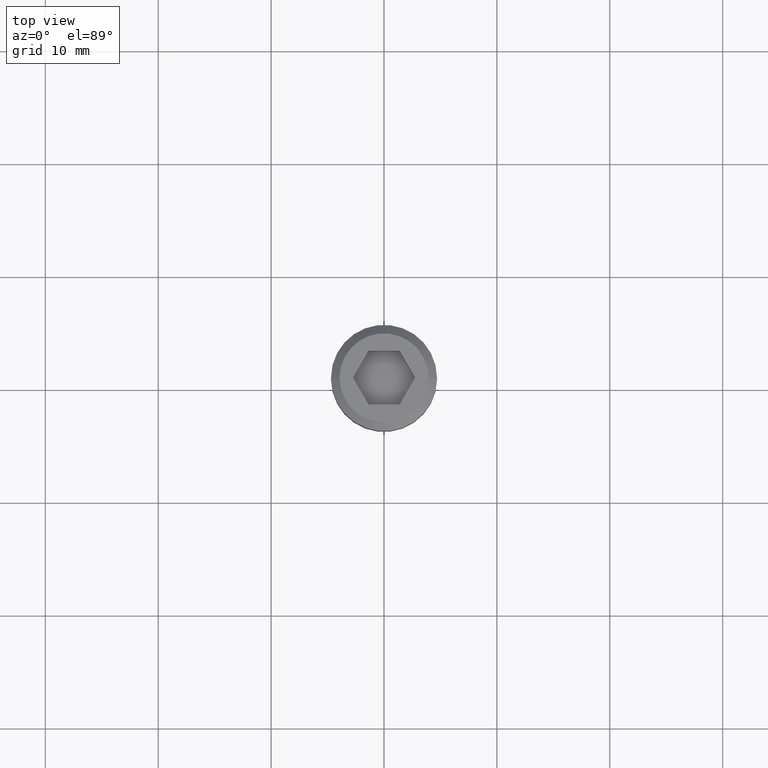
[diagram: clean part render]
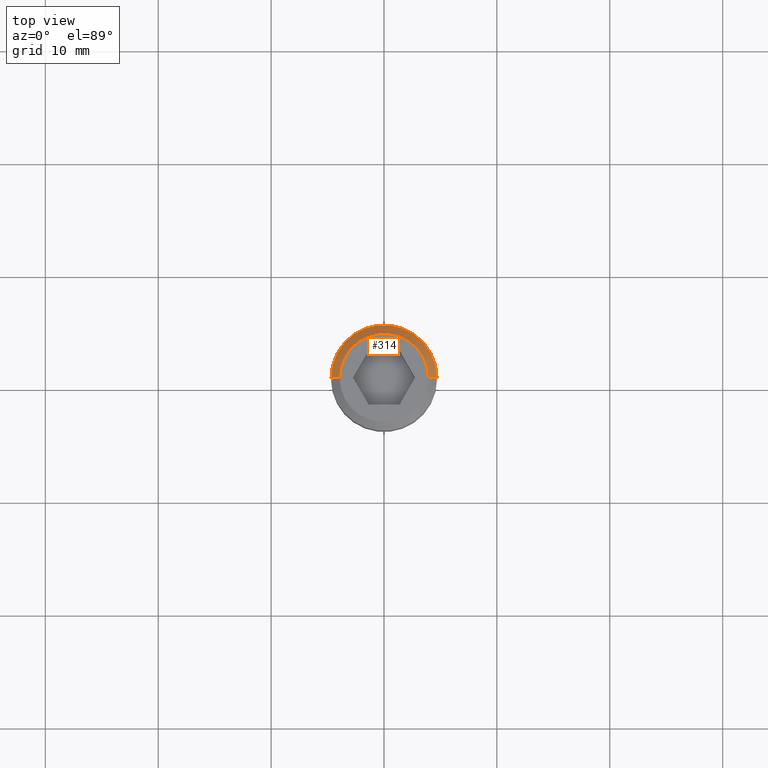
[diagram: same view with one face highlighted and labeled with its STEP entity id]
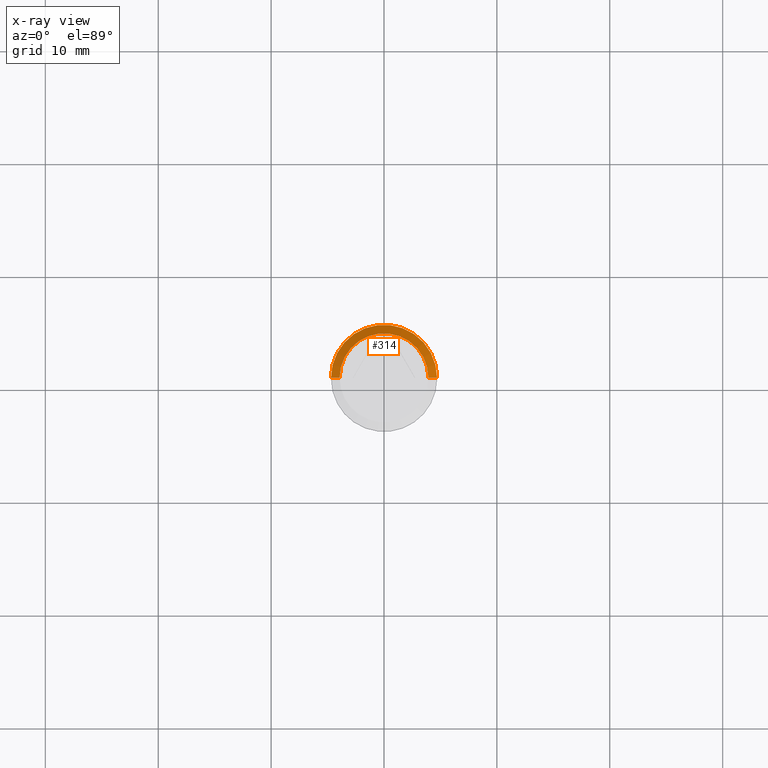
[diagram: x-ray of the same camera — body ghosted, the highlighted face saturated]
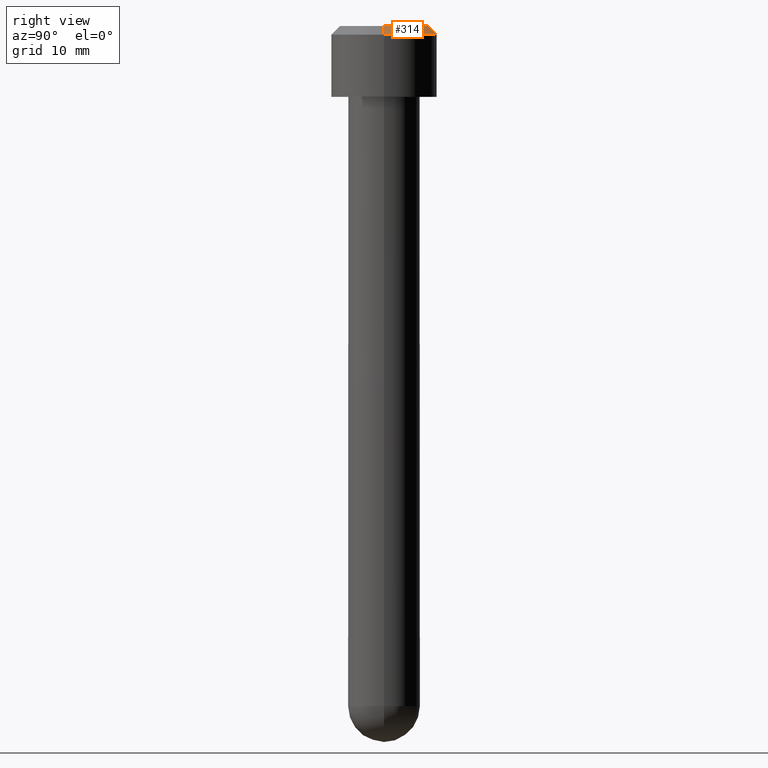
[diagram: same view with one face highlighted and labeled with its STEP entity id]
A machine part, top view. The second image highlights one B-rep face of the part: STEP entity #314.
The next image is the same camera in x-ray: the body ghosted, the highlighted face saturated — about 0% of this face is hidden behind the body in this view.
A second angle (right view) of the same face is appended — the face is thin or edge-on in the first view.
In plain terms, the highlighted conical surface has half-angle 45 deg.
Its self-contained STEP definition (entity closure, byte-faithful):
#13 = AXIS2_PLACEMENT_3D ( 'NONE', #112, #111, #101 ) ;
#19 = EDGE_CURVE ( 'NONE', #83, #193, #470, .T. ) ;
#33 = AXIS2_PLACEMENT_3D ( 'NONE', #80, #102, #161 ) ;
#49 = EDGE_CURVE ( 'NONE', #189, #83, #492, .T. ) ;
#50 = EDGE_CURVE ( 'NONE', #115, #189, #333, .T. ) ;
#68 = AXIS2_PLACEMENT_3D ( 'NONE', #228, #212, #226 ) ;
#76 = EDGE_CURVE ( 'NONE', #115, #193, #509, .T. ) ;
#80 = CARTESIAN_POINT ( 'NONE',  ( 0.0000000000000000000, 0.0000000000000000000, 0.0000000000000000000 ) ) ;
#83 = VERTEX_POINT ( 'NONE', #117 ) ;
#87 = CARTESIAN_POINT ( 'NONE',  ( -0.1549999999999999400, 0.0000000000000000000, 0.0000000000000000000 ) ) ;
#95 = CARTESIAN_POINT ( 'NONE',  ( 0.1850000000000000000, 0.0000000000000000000, -0.03000000000000012400 ) ) ;
#101 = DIRECTION ( 'NONE',  ( 1.000000000000000000, 0.0000000000000000000, 0.0000000000000000000 ) ) ;
#102 = DIRECTION ( 'NONE',  ( 0.0000000000000000000, 0.0000000000000000000, 1.000000000000000000 ) ) ;
#103 = CARTESIAN_POINT ( 'NONE',  ( 0.1549999999999999400, 1.898202538678397000E-017, 0.0000000000000000000 ) ) ;
#111 = DIRECTION ( 'NONE',  ( 0.0000000000000000000, 0.0000000000000000000, -1.000000000000000000 ) ) ;
#112 = CARTESIAN_POINT ( 'NONE',  ( 0.0000000000000000000, 0.0000000000000000000, -0.03000000000000012400 ) ) ;
#115 = VERTEX_POINT ( 'NONE', #206 ) ;
#117 = CARTESIAN_POINT ( 'NONE',  ( -0.1850000000000000000, 2.265596578422603000E-017, -0.03000000000000012400 ) ) ;
#152 = DIRECTION ( 'NONE',  ( -0.7071067811865466800, 0.0000000000000000000, -0.7071067811865483500 ) ) ;
#161 = DIRECTION ( 'NONE',  ( 1.000000000000000000, 0.0000000000000000000, 0.0000000000000000000 ) ) ;
#189 = VERTEX_POINT ( 'NONE', #198 ) ;
#193 = VERTEX_POINT ( 'NONE', #95 ) ;
#196 = DIRECTION ( 'NONE',  ( 0.7071067811865466800, 8.659560562354923000E-017, -0.7071067811865483500 ) ) ;
#198 = CARTESIAN_POINT ( 'NONE',  ( -0.1549999999999999400, 0.0000000000000000000, 0.0000000000000000000 ) ) ;
#206 = CARTESIAN_POINT ( 'NONE',  ( 0.1549999999999999400, 2.081899558550500500E-017, 0.0000000000000000000 ) ) ;
#212 = DIRECTION ( 'NONE',  ( 0.0000000000000000000, 0.0000000000000000000, -1.000000000000000000 ) ) ;
#226 = DIRECTION ( 'NONE',  ( -1.000000000000000000, 0.0000000000000000000, 0.0000000000000000000 ) ) ;
#228 = CARTESIAN_POINT ( 'NONE',  ( 0.0000000000000000000, 0.0000000000000000000, 0.0000000000000000000 ) ) ;
#314 = ADVANCED_FACE ( 'NONE', ( #422 ), #452, .T. ) ;
#327 = ORIENTED_EDGE ( 'NONE', *, *, #76, .T. ) ;
#333 = CIRCLE ( 'NONE', #33, 0.1549999999999999400 ) ;
#363 = ORIENTED_EDGE ( 'NONE', *, *, #19, .F. ) ;
#391 = VECTOR ( 'NONE', #152, 39.37007874015748100 ) ;
#399 = ORIENTED_EDGE ( 'NONE', *, *, #49, .F. ) ;
#402 = ORIENTED_EDGE ( 'NONE', *, *, #50, .F. ) ;
#411 = VECTOR ( 'NONE', #196, 39.37007874015748100 ) ;
#422 = FACE_OUTER_BOUND ( 'NONE', #488, .T. ) ;
#452 = CONICAL_SURFACE ( 'NONE', #68, 0.1549999999999999400, 0.7853981633974471700 ) ;
#470 = CIRCLE ( 'NONE', #13, 0.1850000000000000000 ) ;
#488 = EDGE_LOOP ( 'NONE', ( #402, #327, #363, #399 ) ) ;
#492 = LINE ( 'NONE', #87, #391 ) ;
#509 = LINE ( 'NONE', #103, #411 ) ;